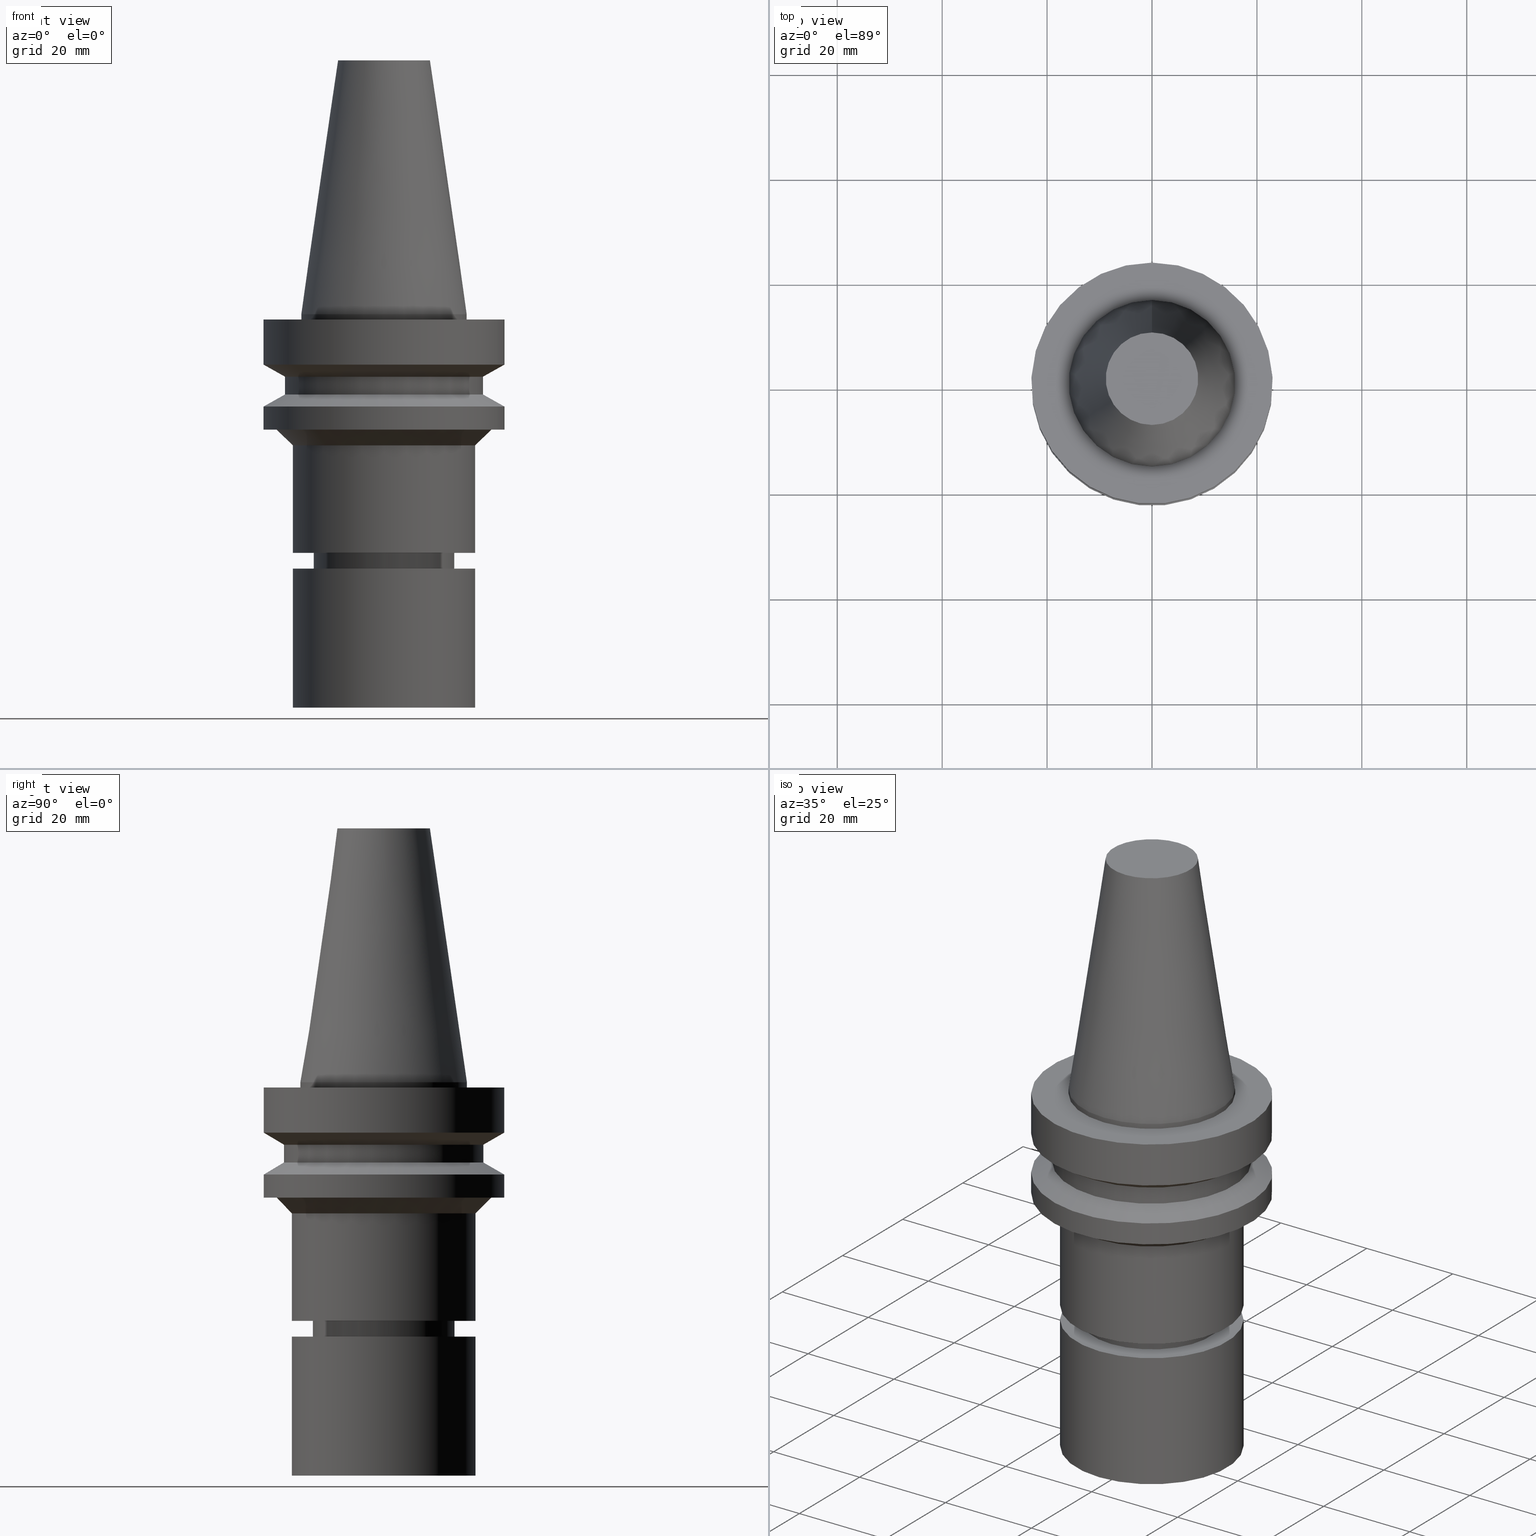
[diagram: canonical four-view strip — front | top / right | iso, engineering-drawing reading convention]
A machine part, canonical four-view strip (front | top / right | iso — engineering-drawing reading convention). The complete STEP part file that produces these views, byte-faithful:
ISO-10303-21;
HEADER;
FILE_DESCRIPTION((''),'1');
FILE_NAME('V:/90_\X2\53D65F9730C730FC30BF\X0\/00_\X2\6DE18DEF30C730FC30BF\X0\/ALL/BBT-BKUS\X2\FF76FF80FF9BFF78FF9E752852A05DE556F3\X0\201801/BBT30-MEGAER/BBT30-MEGAER20-75NL.stp','2018-02-02T07:17:17',(''),(''),'Spatial Interop R21 SP3','Kubotek KeyCreator 2011 V10.0.2 (22737)',' ');
FILE_SCHEMA(('automotive_design'));
ENDSEC;
DATA;
#1=MECHANICAL_DESIGN_GEOMETRIC_PRESENTATION_REPRESENTATION(' ',(#14,#15,#16,#17,#18,#19,#20,#21,#22,#23,#24,#25,#26,#27,#28,#29,#30,#31,#32,#33,#34,#35,#36,#37,#38,#39,#40,#41,#42,#43,#44,#45,#46,#47,#48,#49,#50,#51,#52,#53,#54,#55),#10);
#2=PRODUCT_DEFINITION_CONTEXT('',#56,'design');
#3=APPLICATION_PROTOCOL_DEFINITION('INTERNATIONAL STANDARD','automotive_design',1994,#56);
#4=PRODUCT_CATEGORY_RELATIONSHIP('NONE','NONE',#57,#58);
#5=SHAPE_DEFINITION_REPRESENTATION(#59,#60);
#6=PRODUCT_DEFINITION_CONTEXT('',#61,'design');
#7=APPLICATION_PROTOCOL_DEFINITION('INTERNATIONAL STANDARD','automotive_design',1994,#61);
#8=PRODUCT_CATEGORY_RELATIONSHIP('NONE','NONE',#62,#63);
#9=SHAPE_DEFINITION_REPRESENTATION(#64,#65);
#10= (GEOMETRIC_REPRESENTATION_CONTEXT(3)GLOBAL_UNCERTAINTY_ASSIGNED_CONTEXT((#68))GLOBAL_UNIT_ASSIGNED_CONTEXT((#70,#71,#72))REPRESENTATION_CONTEXT('NONE','WORKSPACE'));
#14=STYLED_ITEM('',(#74),#75);
#15=STYLED_ITEM('',(#76),#77);
#16=STYLED_ITEM('',(#78,#79),#80);
#17=STYLED_ITEM('',(#81),#82);
#18=STYLED_ITEM('',(#83),#84);
#19=STYLED_ITEM('',(#85),#86);
#20=STYLED_ITEM('',(#87,#88),#89);
#21=STYLED_ITEM('',(#90,#91),#92);
#22=STYLED_ITEM('',(#93,#94),#95);
#23=STYLED_ITEM('',(#96),#97);
#24=STYLED_ITEM('',(#98),#99);
#25=STYLED_ITEM('',(#100,#101),#102);
#26=STYLED_ITEM('',(#103),#104);
#27=STYLED_ITEM('',(#105),#106);
#28=STYLED_ITEM('',(#107,#108),#109);
#29=STYLED_ITEM('',(#110,#111),#112);
#30=STYLED_ITEM('',(#113),#114);
#31=STYLED_ITEM('',(#115,#116),#117);
#32=STYLED_ITEM('',(#118,#119),#120);
#33=STYLED_ITEM('',(#121,#122),#123);
#34=STYLED_ITEM('',(#124),#125);
#35=STYLED_ITEM('',(#126,#127),#128);
#36=STYLED_ITEM('',(#129),#130);
#37=STYLED_ITEM('',(#131,#132),#133);
#38=STYLED_ITEM('',(#134,#135),#136);
#39=STYLED_ITEM('',(#137),#138);
#40=STYLED_ITEM('',(#139),#140);
#41=STYLED_ITEM('',(#141,#142),#143);
#42=STYLED_ITEM('',(#144),#145);
#43=STYLED_ITEM('',(#146,#147),#148);
#44=STYLED_ITEM('',(#149,#150),#151);
#45=STYLED_ITEM('',(#152),#153);
#46=STYLED_ITEM('',(#154,#155),#156);
#47=STYLED_ITEM('',(#157,#158),#159);
#48=STYLED_ITEM('',(#160),#161);
#49=STYLED_ITEM('',(#162,#163),#164);
#50=STYLED_ITEM('',(#165),#166);
#51=STYLED_ITEM('',(#167,#168),#169);
#52=STYLED_ITEM('',(#170,#171),#172);
#53=STYLED_ITEM('',(#173,#174),#175);
#54=STYLED_ITEM('',(#176,#177),#178);
#55=STYLED_ITEM('',(#179),#180);
#56=APPLICATION_CONTEXT(' ');
#57=PRODUCT_CATEGORY('part','NONE');
#58=PRODUCT_RELATED_PRODUCT_CATEGORY('detail',' ',(#181));
#59=PRODUCT_DEFINITION_SHAPE('NONE','NONE',#182);
#60=ADVANCED_BREP_SHAPE_REPRESENTATION('Unnamed[1]',(#164,#183),#10);
#61=APPLICATION_CONTEXT(' ');
#62=PRODUCT_CATEGORY('part','NONE');
#63=PRODUCT_RELATED_PRODUCT_CATEGORY('detail',' ',(#184));
#64=PRODUCT_DEFINITION_SHAPE('NONE','NONE',#185);
#65=ADVANCED_BREP_SHAPE_REPRESENTATION('Unnamed[1]',(#175,#186),#10);
#68=UNCERTAINTY_MEASURE_WITH_UNIT(LENGTH_MEASURE(1.0E-006),#70,'','');
#70= (CONVERSION_BASED_UNIT('MILLIMETRE',#189)LENGTH_UNIT()NAMED_UNIT(#192));
#71= (NAMED_UNIT(#194)PLANE_ANGLE_UNIT()SI_UNIT($,.RADIAN.));
#72= (NAMED_UNIT(#194)SOLID_ANGLE_UNIT()SI_UNIT($,.STERADIAN.));
#74=PRESENTATION_STYLE_ASSIGNMENT((#200));
#75=EDGE_CURVE('Unnamed[1]',#201,#201,#202,.T.);
#76=PRESENTATION_STYLE_ASSIGNMENT((#203));
#77=EDGE_CURVE('Unnamed[1]',#204,#204,#205,.T.);
#78=PRESENTATION_STYLE_ASSIGNMENT((#206));
#79=PRESENTATION_STYLE_ASSIGNMENT((#207));
#80=ADVANCED_FACE('Unnamed[1]',(#208,#209),#210,.T.);
#81=PRESENTATION_STYLE_ASSIGNMENT((#211));
#82=EDGE_CURVE('Unnamed[1]',#212,#212,#213,.T.);
#83=PRESENTATION_STYLE_ASSIGNMENT((#214));
#84=EDGE_CURVE('Unnamed[1]',#215,#215,#216,.T.);
#85=PRESENTATION_STYLE_ASSIGNMENT((#217));
#86=EDGE_CURVE('Unnamed[1]',#218,#218,#219,.T.);
#87=PRESENTATION_STYLE_ASSIGNMENT((#220));
#88=PRESENTATION_STYLE_ASSIGNMENT((#221));
#89=ADVANCED_FACE('Unnamed[1]',(#222,#223),#224,.T.);
#90=PRESENTATION_STYLE_ASSIGNMENT((#225));
#91=PRESENTATION_STYLE_ASSIGNMENT((#226));
#92=ADVANCED_FACE('Unnamed[1]',(#227),#228,.T.);
#93=PRESENTATION_STYLE_ASSIGNMENT((#229));
#94=PRESENTATION_STYLE_ASSIGNMENT((#230));
#95=ADVANCED_FACE('Unnamed[1]',(#231,#232),#233,.T.);
#96=PRESENTATION_STYLE_ASSIGNMENT((#234));
#97=EDGE_CURVE('Unnamed[1]',#235,#235,#236,.T.);
#98=PRESENTATION_STYLE_ASSIGNMENT((#237));
#99=EDGE_CURVE('Unnamed[1]',#238,#238,#239,.T.);
#100=PRESENTATION_STYLE_ASSIGNMENT((#240));
#101=PRESENTATION_STYLE_ASSIGNMENT((#241));
#102=ADVANCED_FACE('Unnamed[1]',(#242,#243),#244,.T.);
#103=PRESENTATION_STYLE_ASSIGNMENT((#245));
#104=EDGE_CURVE('Unnamed[1]',#246,#246,#247,.T.);
#105=PRESENTATION_STYLE_ASSIGNMENT((#248));
#106=EDGE_CURVE('Unnamed[1]',#249,#249,#250,.T.);
#107=PRESENTATION_STYLE_ASSIGNMENT((#251));
#108=PRESENTATION_STYLE_ASSIGNMENT((#252));
#109=ADVANCED_FACE('Unnamed[1]',(#253,#254),#255,.T.);
#110=PRESENTATION_STYLE_ASSIGNMENT((#256));
#111=PRESENTATION_STYLE_ASSIGNMENT((#257));
#112=ADVANCED_FACE('Unnamed[1]',(#258,#259),#260,.T.);
#113=PRESENTATION_STYLE_ASSIGNMENT((#261));
#114=EDGE_CURVE('Unnamed[1]',#262,#262,#263,.T.);
#115=PRESENTATION_STYLE_ASSIGNMENT((#264));
#116=PRESENTATION_STYLE_ASSIGNMENT((#265));
#117=ADVANCED_FACE('Unnamed[1]',(#266,#267),#268,.T.);
#118=PRESENTATION_STYLE_ASSIGNMENT((#269));
#119=PRESENTATION_STYLE_ASSIGNMENT((#270));
#120=ADVANCED_FACE('Unnamed[1]',(#271,#272),#273,.T.);
#121=PRESENTATION_STYLE_ASSIGNMENT((#274));
#122=PRESENTATION_STYLE_ASSIGNMENT((#275));
#123=ADVANCED_FACE('Unnamed[1]',(#276,#277),#278,.T.);
#124=PRESENTATION_STYLE_ASSIGNMENT((#279));
#125=EDGE_CURVE('Unnamed[1]',#280,#280,#281,.T.);
#126=PRESENTATION_STYLE_ASSIGNMENT((#282));
#127=PRESENTATION_STYLE_ASSIGNMENT((#283));
#128=ADVANCED_FACE('Unnamed[1]',(#284,#285),#286,.T.);
#129=PRESENTATION_STYLE_ASSIGNMENT((#287));
#130=EDGE_CURVE('Unnamed[1]',#288,#288,#289,.T.);
#131=PRESENTATION_STYLE_ASSIGNMENT((#290));
#132=PRESENTATION_STYLE_ASSIGNMENT((#291));
#133=ADVANCED_FACE('Unnamed[1]',(#292,#293),#294,.T.);
#134=PRESENTATION_STYLE_ASSIGNMENT((#295));
#135=PRESENTATION_STYLE_ASSIGNMENT((#296));
#136=ADVANCED_FACE('Unnamed[1]',(#297,#298),#299,.T.);
#137=PRESENTATION_STYLE_ASSIGNMENT((#300));
#138=EDGE_CURVE('Unnamed[1]',#301,#301,#302,.T.);
#139=PRESENTATION_STYLE_ASSIGNMENT((#303));
#140=EDGE_CURVE('Unnamed[1]',#304,#304,#305,.T.);
#141=PRESENTATION_STYLE_ASSIGNMENT((#306));
#142=PRESENTATION_STYLE_ASSIGNMENT((#307));
#143=ADVANCED_FACE('Unnamed[1]',(#308),#309,.T.);
#144=PRESENTATION_STYLE_ASSIGNMENT((#310));
#145=EDGE_CURVE('Unnamed[1]',#311,#311,#312,.T.);
#146=PRESENTATION_STYLE_ASSIGNMENT((#313));
#147=PRESENTATION_STYLE_ASSIGNMENT((#314));
#148=ADVANCED_FACE('Unnamed[1]',(#315,#316),#317,.T.);
#149=PRESENTATION_STYLE_ASSIGNMENT((#318));
#150=PRESENTATION_STYLE_ASSIGNMENT((#319));
#151=ADVANCED_FACE('Unnamed[1]',(#320,#321),#322,.T.);
#152=PRESENTATION_STYLE_ASSIGNMENT((#323));
#153=EDGE_CURVE('Unnamed[1]',#324,#324,#325,.T.);
#154=PRESENTATION_STYLE_ASSIGNMENT((#326));
#155=PRESENTATION_STYLE_ASSIGNMENT((#327));
#156=ADVANCED_FACE('Unnamed[1]',(#328,#329),#330,.T.);
#157=PRESENTATION_STYLE_ASSIGNMENT((#331));
#158=PRESENTATION_STYLE_ASSIGNMENT((#332));
#159=ADVANCED_FACE('Unnamed[1]',(#333),#334,.T.);
#160=PRESENTATION_STYLE_ASSIGNMENT((#335));
#161=EDGE_CURVE('Unnamed[1]',#336,#336,#337,.T.);
#162=PRESENTATION_STYLE_ASSIGNMENT((#338));
#163=PRESENTATION_STYLE_ASSIGNMENT((#339));
#164=MANIFOLD_SOLID_BREP('Unnamed[1]',#340);
#165=PRESENTATION_STYLE_ASSIGNMENT((#341));
#166=EDGE_CURVE('Unnamed[1]',#342,#342,#343,.T.);
#167=PRESENTATION_STYLE_ASSIGNMENT((#344));
#168=PRESENTATION_STYLE_ASSIGNMENT((#345));
#169=ADVANCED_FACE('Unnamed[1]',(#346,#347),#348,.T.);
#170=PRESENTATION_STYLE_ASSIGNMENT((#349));
#171=PRESENTATION_STYLE_ASSIGNMENT((#350));
#172=ADVANCED_FACE('Unnamed[1]',(#351),#352,.T.);
#173=PRESENTATION_STYLE_ASSIGNMENT((#353));
#174=PRESENTATION_STYLE_ASSIGNMENT((#354));
#175=MANIFOLD_SOLID_BREP('Unnamed[1]',#355);
#176=PRESENTATION_STYLE_ASSIGNMENT((#356));
#177=PRESENTATION_STYLE_ASSIGNMENT((#357));
#178=ADVANCED_FACE('Unnamed[1]',(#358,#359),#360,.T.);
#179=PRESENTATION_STYLE_ASSIGNMENT((#361));
#180=EDGE_CURVE('Unnamed[1]',#362,#362,#363,.T.);
#181=PRODUCT('Unnamed[1]','Unnamed[1]','PART-Unnamed[1]-DESC',(#364));
#182=PRODUCT_DEFINITION('NONE','NONE',#365,#2);
#183=AXIS2_PLACEMENT_3D('',#366,#367,#368);
#184=PRODUCT('Unnamed[1]','Unnamed[1]','PART-Unnamed[1]-DESC',(#369));
#185=PRODUCT_DEFINITION('NONE','NONE',#370,#6);
#186=AXIS2_PLACEMENT_3D('',#371,#372,#373);
#189=LENGTH_MEASURE_WITH_UNIT(LENGTH_MEASURE(1.0),#374);
#192=DIMENSIONAL_EXPONENTS(1.0,0.0,0.0,0.0,0.0,0.0,0.0);
#194=DIMENSIONAL_EXPONENTS(0.0,0.0,0.0,0.0,0.0,0.0,0.0);
#200=CURVE_STYLE('',#375,POSITIVE_LENGTH_MEASURE(1000.0),#376);
#201=VERTEX_POINT('',#377);
#202=CIRCLE('',#378,19.0);
#203=CURVE_STYLE('',#379,POSITIVE_LENGTH_MEASURE(1000.0),#380);
#204=VERTEX_POINT('',#381);
#205=CIRCLE('',#382,23.0);
#206=SURFACE_STYLE_USAGE(.BOTH.,#383);
#207=CURVE_STYLE('',#384,POSITIVE_LENGTH_MEASURE(1000.0),#385);
#208=FACE_BOUND('',#386,.T.);
#209=FACE_BOUND('',#387,.T.);
#210=CONICAL_SURFACE('',#388,12.3457500009933,0.144815870013618);
#211=CURVE_STYLE('',#389,POSITIVE_LENGTH_MEASURE(1000.0),#390);
#212=VERTEX_POINT('',#391);
#213=CIRCLE('',#392,13.4999999999908);
#214=CURVE_STYLE('',#393,POSITIVE_LENGTH_MEASURE(1000.0),#394);
#215=VERTEX_POINT('',#395);
#216=CIRCLE('',#396,12.4999999999998);
#217=CURVE_STYLE('',#397,POSITIVE_LENGTH_MEASURE(1000.0),#398);
#218=VERTEX_POINT('',#399);
#219=CIRCLE('',#400,12.4999999999999);
#220=SURFACE_STYLE_USAGE(.BOTH.,#401);
#221=CURVE_STYLE('',#402,POSITIVE_LENGTH_MEASURE(1000.0),#403);
#222=FACE_BOUND('',#404,.T.);
#223=FACE_BOUND('',#405,.T.);
#224=CONICAL_SURFACE('',#406,18.9999999999971,0.78539816339738);
#225=SURFACE_STYLE_USAGE(.BOTH.,#407);
#226=CURVE_STYLE('',#408,POSITIVE_LENGTH_MEASURE(1000.0),#409);
#227=FACE_OUTER_BOUND('',#410,.T.);
#228=PLANE('',#411);
#229=SURFACE_STYLE_USAGE(.BOTH.,#412);
#230=CURVE_STYLE('',#413,POSITIVE_LENGTH_MEASURE(1000.0),#414);
#231=FACE_BOUND('',#415,.T.);
#232=FACE_BOUND('',#416,.T.);
#233=CYLINDRICAL_SURFACE('',#417,19.0);
#234=CURVE_STYLE('',#418,POSITIVE_LENGTH_MEASURE(1000.0),#419);
#235=VERTEX_POINT('',#420);
#236=CIRCLE('',#421,13.5000000000005);
#237=CURVE_STYLE('',#422,POSITIVE_LENGTH_MEASURE(1000.0),#423);
#238=VERTEX_POINT('',#424);
#239=CIRCLE('',#425,11.3999999999978);
#240=SURFACE_STYLE_USAGE(.BOTH.,#426);
#241=CURVE_STYLE('',#427,POSITIVE_LENGTH_MEASURE(1000.0),#428);
#242=FACE_BOUND('',#429,.T.);
#243=FACE_BOUND('',#430,.T.);
#244=CONICAL_SURFACE('',#431,21.0,1.04719755058881);
#245=CURVE_STYLE('',#432,POSITIVE_LENGTH_MEASURE(1000.0),#433);
#246=VERTEX_POINT('',#434);
#247=CIRCLE('',#435,8.81650000198669);
#248=CURVE_STYLE('',#436,POSITIVE_LENGTH_MEASURE(1000.0),#437);
#249=VERTEX_POINT('',#438);
#250=CIRCLE('',#439,17.4999999999971);
#251=SURFACE_STYLE_USAGE(.BOTH.,#440);
#252=CURVE_STYLE('',#441,POSITIVE_LENGTH_MEASURE(1000.0),#442);
#253=FACE_BOUND('',#443,.T.);
#254=FACE_BOUND('',#444,.T.);
#255=CONICAL_SURFACE('',#445,11.9499999999988,0.523598775598664);
#256=SURFACE_STYLE_USAGE(.BOTH.,#446);
#257=CURVE_STYLE('',#447,POSITIVE_LENGTH_MEASURE(1000.0),#448);
#258=FACE_BOUND('',#449,.T.);
#259=FACE_BOUND('',#450,.T.);
#260=CYLINDRICAL_SURFACE('',#451,23.0);
#261=CURVE_STYLE('',#452,POSITIVE_LENGTH_MEASURE(1000.0),#453);
#262=VERTEX_POINT('',#454);
#263=CIRCLE('',#455,17.5);
#264=SURFACE_STYLE_USAGE(.BOTH.,#456);
#265=CURVE_STYLE('',#457,POSITIVE_LENGTH_MEASURE(1000.0),#458);
#266=FACE_OUTER_BOUND('',#459,.T.);
#267=FACE_BOUND('',#460,.T.);
#268=PLANE('',#461);
#269=SURFACE_STYLE_USAGE(.BOTH.,#462);
#270=CURVE_STYLE('',#463,POSITIVE_LENGTH_MEASURE(1000.0),#464);
#271=FACE_BOUND('',#465,.T.);
#272=FACE_BOUND('',#466,.T.);
#273=CYLINDRICAL_SURFACE('',#467,12.4999999999999);
#274=SURFACE_STYLE_USAGE(.BOTH.,#468);
#275=CURVE_STYLE('',#469,POSITIVE_LENGTH_MEASURE(1000.0),#470);
#276=FACE_BOUND('',#471,.T.);
#277=FACE_OUTER_BOUND('',#472,.T.);
#278=PLANE('',#473);
#279=CURVE_STYLE('',#474,POSITIVE_LENGTH_MEASURE(1000.0),#475);
#280=VERTEX_POINT('',#476);
#281=CIRCLE('',#477,23.0);
#282=SURFACE_STYLE_USAGE(.BOTH.,#478);
#283=CURVE_STYLE('',#479,POSITIVE_LENGTH_MEASURE(1000.0),#480);
#284=FACE_BOUND('',#481,.T.);
#285=FACE_BOUND('',#482,.T.);
#286=CYLINDRICAL_SURFACE('',#483,23.0);
#287=CURVE_STYLE('',#484,POSITIVE_LENGTH_MEASURE(1000.0),#485);
#288=VERTEX_POINT('',#486);
#289=CIRCLE('',#487,17.5);
#290=SURFACE_STYLE_USAGE(.BOTH.,#488);
#291=CURVE_STYLE('',#489,POSITIVE_LENGTH_MEASURE(1000.0),#490);
#292=FACE_BOUND('',#491,.T.);
#293=FACE_BOUND('',#492,.T.);
#294=CYLINDRICAL_SURFACE('',#493,15.875);
#295=SURFACE_STYLE_USAGE(.BOTH.,#494);
#296=CURVE_STYLE('',#495,POSITIVE_LENGTH_MEASURE(1000.0),#496);
#297=FACE_BOUND('',#497,.T.);
#298=FACE_BOUND('',#498,.T.);
#299=CYLINDRICAL_SURFACE('',#499,13.4999999999956);
#300=CURVE_STYLE('',#500,POSITIVE_LENGTH_MEASURE(1000.0),#501);
#301=VERTEX_POINT('',#502);
#302=CIRCLE('',#503,15.875);
#303=CURVE_STYLE('',#504,POSITIVE_LENGTH_MEASURE(1000.0),#505);
#304=VERTEX_POINT('',#506);
#305=CIRCLE('',#507,23.0);
#306=SURFACE_STYLE_USAGE(.BOTH.,#508);
#307=CURVE_STYLE('',#509,POSITIVE_LENGTH_MEASURE(1000.0),#510);
#308=FACE_OUTER_BOUND('',#511,.T.);
#309=PLANE('',#512);
#310=CURVE_STYLE('',#513,POSITIVE_LENGTH_MEASURE(1000.0),#514);
#311=VERTEX_POINT('',#515);
#312=CIRCLE('',#516,20.4999999999971);
#313=SURFACE_STYLE_USAGE(.BOTH.,#517);
#314=CURVE_STYLE('',#518,POSITIVE_LENGTH_MEASURE(1000.0),#519);
#315=FACE_BOUND('',#520,.T.);
#316=FACE_BOUND('',#521,.T.);
#317=CYLINDRICAL_SURFACE('',#522,17.4999999999985);
#318=SURFACE_STYLE_USAGE(.BOTH.,#523);
#319=CURVE_STYLE('',#524,POSITIVE_LENGTH_MEASURE(1000.0),#525);
#320=FACE_BOUND('',#526,.T.);
#321=FACE_BOUND('',#527,.T.);
#322=CONICAL_SURFACE('',#528,21.0,1.04719755058882);
#323=CURVE_STYLE('',#529,POSITIVE_LENGTH_MEASURE(1000.0),#530);
#324=VERTEX_POINT('',#531);
#325=CIRCLE('',#532,15.875);
#326=SURFACE_STYLE_USAGE(.BOTH.,#533);
#327=CURVE_STYLE('',#534,POSITIVE_LENGTH_MEASURE(1000.0),#535);
#328=FACE_BOUND('',#536,.T.);
#329=FACE_BOUND('',#537,.T.);
#330=CYLINDRICAL_SURFACE('',#538,17.5);
#331=SURFACE_STYLE_USAGE(.BOTH.,#539);
#332=CURVE_STYLE('',#540,POSITIVE_LENGTH_MEASURE(1000.0),#541);
#333=FACE_OUTER_BOUND('',#542,.T.);
#334=PLANE('',#543);
#335=CURVE_STYLE('',#544,POSITIVE_LENGTH_MEASURE(1000.0),#545);
#336=VERTEX_POINT('',#546);
#337=CIRCLE('',#547,23.0);
#338=SURFACE_STYLE_USAGE(.BOTH.,#548);
#339=CURVE_STYLE('',#549,POSITIVE_LENGTH_MEASURE(1000.0),#550);
#340=CLOSED_SHELL('',(#143,#80,#133,#117,#128,#102,#95,#151,#112,#169,#89,#148,#123,#136,#178,#120,#109,#92));
#341=CURVE_STYLE('',#551,POSITIVE_LENGTH_MEASURE(1000.0),#552);
#342=VERTEX_POINT('',#553);
#343=CIRCLE('',#554,17.5);
#344=SURFACE_STYLE_USAGE(.BOTH.,#555);
#345=CURVE_STYLE('',#556,POSITIVE_LENGTH_MEASURE(1000.0),#557);
#346=FACE_BOUND('',#558,.T.);
#347=FACE_OUTER_BOUND('',#559,.T.);
#348=PLANE('',#560);
#349=SURFACE_STYLE_USAGE(.BOTH.,#561);
#350=CURVE_STYLE('',#562,POSITIVE_LENGTH_MEASURE(1000.0),#563);
#351=FACE_OUTER_BOUND('',#564,.T.);
#352=PLANE('',#565);
#353=SURFACE_STYLE_USAGE(.BOTH.,#566);
#354=CURVE_STYLE('',#567,POSITIVE_LENGTH_MEASURE(1000.0),#568);
#355=CLOSED_SHELL('',(#172,#159,#156));
#356=SURFACE_STYLE_USAGE(.BOTH.,#569);
#357=CURVE_STYLE('',#570,POSITIVE_LENGTH_MEASURE(1000.0),#571);
#358=FACE_BOUND('',#572,.T.);
#359=FACE_BOUND('',#573,.T.);
#360=CONICAL_SURFACE('',#574,13.0000000000002,1.04719755119485);
#361=CURVE_STYLE('',#575,POSITIVE_LENGTH_MEASURE(1000.0),#576);
#362=VERTEX_POINT('',#577);
#363=CIRCLE('',#578,19.0);
#364=PRODUCT_CONTEXT('',#56,'mechanical');
#365=PRODUCT_DEFINITION_FORMATION_WITH_SPECIFIED_SOURCE(' ','NONE',#181,.NOT_KNOWN.);
#366=CARTESIAN_POINT('',(0.0,0.0,0.0));
#367=DIRECTION('',(0.0,0.0,1.0));
#368=DIRECTION('',(1.0,0.0,0.0));
#369=PRODUCT_CONTEXT('',#61,'mechanical');
#370=PRODUCT_DEFINITION_FORMATION_WITH_SPECIFIED_SOURCE(' ','NONE',#184,.NOT_KNOWN.);
#371=CARTESIAN_POINT('',(0.0,0.0,0.0));
#372=DIRECTION('',(0.0,0.0,1.0));
#373=DIRECTION('',(1.0,0.0,0.0));
#374= (NAMED_UNIT(#192)LENGTH_UNIT()SI_UNIT(.MILLI.,.METRE.));
#375=DRAUGHTING_PRE_DEFINED_CURVE_FONT('continuous');
#376=COLOUR_RGB('',0.0,1.0,0.0);
#377=CARTESIAN_POINT('',(7.29240495619202E-016,19.0,-11.90940108));
#378=AXIS2_PLACEMENT_3D('',#580,#581,#582);
#379=DRAUGHTING_PRE_DEFINED_CURVE_FONT('continuous');
#380=COLOUR_RGB('',0.0,1.0,0.0);
#381=CARTESIAN_POINT('',(1.07768918324967E-015,23.0,-17.6));
#382=AXIS2_PLACEMENT_3D('',#583,#584,#585);
#383=SURFACE_SIDE_STYLE('',(#586));
#384=DRAUGHTING_PRE_DEFINED_CURVE_FONT('continuous');
#385=COLOUR_RGB('',0.0,1.0,0.0);
#386=EDGE_LOOP('',(#587));
#387=EDGE_LOOP('',(#588));
#388=AXIS2_PLACEMENT_3D('',#589,#590,#591);
#389=DRAUGHTING_PRE_DEFINED_CURVE_FONT('continuous');
#390=COLOUR_RGB('',0.0,1.0,0.0);
#391=CARTESIAN_POINT('',(2.7860714680602E-015,13.4999999999908,-45.4999999999996));
#392=AXIS2_PLACEMENT_3D('',#592,#593,#594);
#393=DRAUGHTING_PRE_DEFINED_CURVE_FONT('continuous');
#394=COLOUR_RGB('',0.0,1.0,0.0);
#395=CARTESIAN_POINT('',(3.87568528896053E-015,12.4999999999998,-63.2947441116725));
#396=AXIS2_PLACEMENT_3D('',#595,#596,#597);
#397=DRAUGHTING_PRE_DEFINED_CURVE_FONT('continuous');
#398=COLOUR_RGB('',0.0,1.0,0.0);
#399=CARTESIAN_POINT('',(3.17793855151861E-015,12.4999999999999,-51.8996751345975));
#400=AXIS2_PLACEMENT_3D('',#598,#599,#600);
#401=SURFACE_SIDE_STYLE('',(#601));
#402=DRAUGHTING_PRE_DEFINED_CURVE_FONT('continuous');
#403=COLOUR_RGB('',0.0,1.0,0.0);
#404=EDGE_LOOP('',(#602));
#405=EDGE_LOOP('',(#603));
#406=AXIS2_PLACEMENT_3D('',#604,#605,#606);
#407=SURFACE_SIDE_STYLE('',(#607));
#408=DRAUGHTING_PRE_DEFINED_CURVE_FONT('continuous');
#409=COLOUR_RGB('',0.0,1.0,0.0);
#410=EDGE_LOOP('',(#608));
#411=AXIS2_PLACEMENT_3D('',#609,#610,#611);
#412=SURFACE_SIDE_STYLE('',(#612));
#413=DRAUGHTING_PRE_DEFINED_CURVE_FONT('continuous');
#414=COLOUR_RGB('',0.0,1.0,0.0);
#415=EDGE_LOOP('',(#613));
#416=EDGE_LOOP('',(#614));
#417=AXIS2_PLACEMENT_3D('',#615,#616,#617);
#418=DRAUGHTING_PRE_DEFINED_CURVE_FONT('continuous');
#419=COLOUR_RGB('',0.0,1.0,0.0);
#420=CARTESIAN_POINT('',(3.14258604356095E-015,13.5000000000005,-51.3223248654052));
#421=AXIS2_PLACEMENT_3D('',#618,#619,#620);
#422=DRAUGHTING_PRE_DEFINED_CURVE_FONT('continuous');
#423=COLOUR_RGB('',0.0,1.0,0.0);
#424=CARTESIAN_POINT('',(3.99234856522038E-015,11.3999999999978,-65.2000000000002));
#425=AXIS2_PLACEMENT_3D('',#621,#622,#623);
#426=SURFACE_SIDE_STYLE('',(#624));
#427=DRAUGHTING_PRE_DEFINED_CURVE_FONT('continuous');
#428=COLOUR_RGB('',0.0,1.0,0.0);
#429=EDGE_LOOP('',(#625));
#430=EDGE_LOOP('',(#626));
#431=AXIS2_PLACEMENT_3D('',#627,#628,#629);
#432=DRAUGHTING_PRE_DEFINED_CURVE_FONT('continuous');
#433=COLOUR_RGB('',0.0,1.0,0.0);
#434=CARTESIAN_POINT('',(-2.96364525393659E-015,8.81650000198669,48.4));
#435=AXIS2_PLACEMENT_3D('',#630,#631,#632);
#436=DRAUGHTING_PRE_DEFINED_CURVE_FONT('continuous');
#437=COLOUR_RGB('',0.0,1.0,0.0);
#438=CARTESIAN_POINT('',(1.53080849893422E-015,17.4999999999971,-25.0000000000004));
#439=AXIS2_PLACEMENT_3D('',#633,#634,#635);
#440=SURFACE_SIDE_STYLE('',(#636));
#441=DRAUGHTING_PRE_DEFINED_CURVE_FONT('continuous');
#442=COLOUR_RGB('',0.0,1.0,0.0);
#443=EDGE_LOOP('',(#637));
#444=EDGE_LOOP('',(#638));
#445=AXIS2_PLACEMENT_3D('',#639,#640,#641);
#446=SURFACE_SIDE_STYLE('',(#642));
#447=DRAUGHTING_PRE_DEFINED_CURVE_FONT('continuous');
#448=COLOUR_RGB('',0.0,1.0,0.0);
#449=EDGE_LOOP('',(#643));
#450=EDGE_LOOP('',(#644));
#451=AXIS2_PLACEMENT_3D('',#645,#646,#647);
#452=DRAUGHTING_PRE_DEFINED_CURVE_FONT('continuous');
#453=COLOUR_RGB('',0.0,1.0,0.0);
#454=CARTESIAN_POINT('',(4.59242549680257E-015,17.5,-75.0));
#455=AXIS2_PLACEMENT_3D('',#648,#649,#650);
#456=SURFACE_SIDE_STYLE('',(#651));
#457=DRAUGHTING_PRE_DEFINED_CURVE_FONT('continuous');
#458=COLOUR_RGB('',0.0,1.0,0.0);
#459=EDGE_LOOP('',(#652));
#460=EDGE_LOOP('',(#653));
#461=AXIS2_PLACEMENT_3D('',#654,#655,#656);
#462=SURFACE_SIDE_STYLE('',(#657));
#463=DRAUGHTING_PRE_DEFINED_CURVE_FONT('continuous');
#464=COLOUR_RGB('',0.0,1.0,0.0);
#465=EDGE_LOOP('',(#658));
#466=EDGE_LOOP('',(#659));
#467=AXIS2_PLACEMENT_3D('',#660,#661,#662);
#468=SURFACE_SIDE_STYLE('',(#663));
#469=DRAUGHTING_PRE_DEFINED_CURVE_FONT('continuous');
#470=COLOUR_RGB('',0.0,1.0,0.0);
#471=EDGE_LOOP('',(#664));
#472=EDGE_LOOP('',(#665));
#473=AXIS2_PLACEMENT_3D('',#666,#667,#668);
#474=DRAUGHTING_PRE_DEFINED_CURVE_FONT('continuous');
#475=COLOUR_RGB('',0.0,1.0,0.0);
#476=CARTESIAN_POINT('',(5.87830463590729E-016,23.0,-9.59999999999999));
#477=AXIS2_PLACEMENT_3D('',#669,#670,#671);
#478=SURFACE_SIDE_STYLE('',(#672));
#479=DRAUGHTING_PRE_DEFINED_CURVE_FONT('continuous');
#480=COLOUR_RGB('',0.0,1.0,0.0);
#481=EDGE_LOOP('',(#673));
#482=EDGE_LOOP('',(#674));
#483=AXIS2_PLACEMENT_3D('',#675,#676,#677);
#484=DRAUGHTING_PRE_DEFINED_CURVE_FONT('continuous');
#485=COLOUR_RGB('',0.0,1.0,0.0);
#486=CARTESIAN_POINT('',(2.78607146806022E-015,17.5,-45.4999999999998));
#487=AXIS2_PLACEMENT_3D('',#678,#679,#680);
#488=SURFACE_SIDE_STYLE('',(#681));
#489=DRAUGHTING_PRE_DEFINED_CURVE_FONT('continuous');
#490=COLOUR_RGB('',0.0,1.0,0.0);
#491=EDGE_LOOP('',(#682));
#492=EDGE_LOOP('',(#683));
#493=AXIS2_PLACEMENT_3D('',#684,#685,#686);
#494=SURFACE_SIDE_STYLE('',(#687));
#495=DRAUGHTING_PRE_DEFINED_CURVE_FONT('continuous');
#496=COLOUR_RGB('',0.0,1.0,0.0);
#497=EDGE_LOOP('',(#688));
#498=EDGE_LOOP('',(#689));
#499=AXIS2_PLACEMENT_3D('',#690,#691,#692);
#500=DRAUGHTING_PRE_DEFINED_CURVE_FONT('continuous');
#501=COLOUR_RGB('',0.0,1.0,0.0);
#502=CARTESIAN_POINT('',(-1.95674482349743E-031,15.875,1.94412679364642E-015));
#503=AXIS2_PLACEMENT_3D('',#693,#694,#695);
#504=DRAUGHTING_PRE_DEFINED_CURVE_FONT('continuous');
#505=COLOUR_RGB('',0.0,1.0,0.0);
#506=CARTESIAN_POINT('',(6.12323399573674E-017,23.0,-0.999999999999997));
#507=AXIS2_PLACEMENT_3D('',#696,#697,#698);
#508=SURFACE_SIDE_STYLE('',(#699));
#509=DRAUGHTING_PRE_DEFINED_CURVE_FONT('continuous');
#510=COLOUR_RGB('',0.0,1.0,0.0);
#511=EDGE_LOOP('',(#700));
#512=AXIS2_PLACEMENT_3D('',#701,#702,#703);
#513=DRAUGHTING_PRE_DEFINED_CURVE_FONT('continuous');
#514=COLOUR_RGB('',0.0,1.0,0.0);
#515=CARTESIAN_POINT('',(1.34711147906209E-015,20.4999999999971,-22.0));
#516=AXIS2_PLACEMENT_3D('',#704,#705,#706);
#517=SURFACE_SIDE_STYLE('',(#707));
#518=DRAUGHTING_PRE_DEFINED_CURVE_FONT('continuous');
#519=COLOUR_RGB('',0.0,1.0,0.0);
#520=EDGE_LOOP('',(#708));
#521=EDGE_LOOP('',(#709));
#522=AXIS2_PLACEMENT_3D('',#710,#711,#712);
#523=SURFACE_SIDE_STYLE('',(#713));
#524=DRAUGHTING_PRE_DEFINED_CURVE_FONT('continuous');
#525=COLOUR_RGB('',0.0,1.0,0.0);
#526=EDGE_LOOP('',(#714));
#527=EDGE_LOOP('',(#715));
#528=AXIS2_PLACEMENT_3D('',#716,#717,#718);
#529=DRAUGHTING_PRE_DEFINED_CURVE_FONT('continuous');
#530=COLOUR_RGB('',0.0,1.0,0.0);
#531=CARTESIAN_POINT('',(6.12323399573675E-017,15.875,-0.999999999999998));
#532=AXIS2_PLACEMENT_3D('',#719,#720,#721);
#533=SURFACE_SIDE_STYLE('',(#722));
#534=DRAUGHTING_PRE_DEFINED_CURVE_FONT('continuous');
#535=COLOUR_RGB('',0.0,1.0,0.0);
#536=EDGE_LOOP('',(#723));
#537=EDGE_LOOP('',(#724));
#538=AXIS2_PLACEMENT_3D('',#725,#726,#727);
#539=SURFACE_SIDE_STYLE('',(#728));
#540=DRAUGHTING_PRE_DEFINED_CURVE_FONT('continuous');
#541=COLOUR_RGB('',0.0,1.0,0.0);
#542=EDGE_LOOP('',(#729));
#543=AXIS2_PLACEMENT_3D('',#730,#731,#732);
#544=DRAUGHTING_PRE_DEFINED_CURVE_FONT('continuous');
#545=COLOUR_RGB('',0.0,1.0,0.0);
#546=CARTESIAN_POINT('',(1.34711147906209E-015,23.0,-22.0));
#547=AXIS2_PLACEMENT_3D('',#733,#734,#735);
#548=SURFACE_SIDE_STYLE('',(#736));
#549=DRAUGHTING_PRE_DEFINED_CURVE_FONT('continuous');
#550=COLOUR_RGB('',0.0,1.0,0.0);
#551=DRAUGHTING_PRE_DEFINED_CURVE_FONT('continuous');
#552=COLOUR_RGB('',0.0,1.0,0.0);
#553=CARTESIAN_POINT('',(2.96976942226369E-015,17.5,-48.5000152587891));
#554=AXIS2_PLACEMENT_3D('',#737,#738,#739);
#555=SURFACE_SIDE_STYLE('',(#740));
#556=DRAUGHTING_PRE_DEFINED_CURVE_FONT('continuous');
#557=COLOUR_RGB('',0.0,1.0,0.0);
#558=EDGE_LOOP('',(#741));
#559=EDGE_LOOP('',(#742));
#560=AXIS2_PLACEMENT_3D('',#743,#744,#745);
#561=SURFACE_SIDE_STYLE('',(#746));
#562=DRAUGHTING_PRE_DEFINED_CURVE_FONT('continuous');
#563=COLOUR_RGB('',0.0,1.0,0.0);
#564=EDGE_LOOP('',(#747));
#565=AXIS2_PLACEMENT_3D('',#748,#749,#750);
#566=SURFACE_SIDE_STYLE('',(#751));
#567=DRAUGHTING_PRE_DEFINED_CURVE_FONT('continuous');
#568=COLOUR_RGB('',0.0,1.0,0.0);
#569=SURFACE_SIDE_STYLE('',(#752));
#570=DRAUGHTING_PRE_DEFINED_CURVE_FONT('continuous');
#571=COLOUR_RGB('',0.0,1.0,0.0);
#572=EDGE_LOOP('',(#753));
#573=EDGE_LOOP('',(#754));
#574=AXIS2_PLACEMENT_3D('',#755,#756,#757);
#575=DRAUGHTING_PRE_DEFINED_CURVE_FONT('continuous');
#576=COLOUR_RGB('',0.0,1.0,0.0);
#577=CARTESIAN_POINT('',(9.36279151221199E-016,19.0,-15.29059892));
#578=AXIS2_PLACEMENT_3D('',#758,#759,#760);
#580=CARTESIAN_POINT('',(7.29240495619202E-016,1.4584809912384E-015,-11.90940108));
#581=DIRECTION('',(6.12323399573677E-017,1.22464679914735E-016,-1.0));
#582=DIRECTION('',(-1.23259516440783E-032,1.0,1.22464679914735E-016));
#583=CARTESIAN_POINT('',(1.07768918324967E-015,2.15537836649934E-015,-17.6));
#584=DIRECTION('',(6.12323399573677E-017,1.22464679914735E-016,-1.0));
#585=DIRECTION('',(-1.23259516440783E-032,1.0,1.22464679914735E-016));
#586=SURFACE_STYLE_FILL_AREA(#761);
#587=ORIENTED_EDGE('',*,*,#138,.F.);
#588=ORIENTED_EDGE('',*,*,#104,.T.);
#589=CARTESIAN_POINT('',(-1.4818226269683E-015,-2.96364525393659E-015,24.2));
#590=DIRECTION('',(6.12323399573677E-017,1.22464679914735E-016,-1.0));
#591=DIRECTION('',(-1.23259516440783E-032,1.0,1.22464679914735E-016));
#592=CARTESIAN_POINT('',(2.7860714680602E-015,5.57214293612041E-015,-45.4999999999996));
#593=DIRECTION('',(6.12323399573677E-017,1.22464679914735E-016,-1.0));
#594=DIRECTION('',(-1.23259516440783E-032,1.0,1.22464679914735E-016));
#595=CARTESIAN_POINT('',(3.87568528896053E-015,7.75137057792105E-015,-63.2947441116725));
#596=DIRECTION('',(6.12323399573677E-017,1.22464679914735E-016,-1.0));
#597=DIRECTION('',(-1.23259516440783E-032,1.0,1.22464679914735E-016));
#598=CARTESIAN_POINT('',(3.17793855151861E-015,6.35587710303722E-015,-51.8996751345975));
#599=DIRECTION('',(6.12323399573677E-017,1.22464679914735E-016,-1.0));
#600=DIRECTION('',(-1.23259516440783E-032,1.0,1.22464679914735E-016));
#601=SURFACE_STYLE_FILL_AREA(#762);
#602=ORIENTED_EDGE('',*,*,#106,.F.);
#603=ORIENTED_EDGE('',*,*,#145,.T.);
#604=CARTESIAN_POINT('',(1.43895998899815E-015,2.87791997799631E-015,-23.5000000000002));
#605=DIRECTION('',(-6.12323399573677E-017,-1.22464679914735E-016,1.0));
#606=DIRECTION('',(-1.23259516440783E-032,1.0,1.22464679914735E-016));
#607=SURFACE_STYLE_FILL_AREA(#763);
#608=ORIENTED_EDGE('',*,*,#99,.T.);
#609=CARTESIAN_POINT('',(3.99234856522038E-015,5.69999999999888,-65.2000000000001));
#610=DIRECTION('',(6.12323399573677E-017,-1.60828959602311E-014,-1.0));
#611=DIRECTION('',(9.79966200205077E-031,1.0,-1.60828959602311E-014));
#612=SURFACE_STYLE_FILL_AREA(#764);
#613=ORIENTED_EDGE('',*,*,#180,.F.);
#614=ORIENTED_EDGE('',*,*,#75,.T.);
#615=CARTESIAN_POINT('',(8.32759823420201E-016,1.6655196468404E-015,-13.6));
#616=DIRECTION('',(6.12323399573677E-017,1.22464679914735E-016,-1.0));
#617=DIRECTION('',(-1.23259516440783E-032,1.0,1.22464679914735E-016));
#618=CARTESIAN_POINT('',(3.14258604356095E-015,6.28517208712191E-015,-51.3223248654052));
#619=DIRECTION('',(6.12323399573677E-017,1.22464679914735E-016,-1.0));
#620=DIRECTION('',(-1.23259516440783E-032,1.0,1.22464679914735E-016));
#621=CARTESIAN_POINT('',(3.99234856522038E-015,7.98469713044077E-015,-65.2000000000002));
#622=DIRECTION('',(6.12323399573676E-017,1.22464679914735E-016,-1.0));
#623=DIRECTION('',(-1.23259516440783E-032,1.0,1.22464679914735E-016));
#624=SURFACE_STYLE_FILL_AREA(#765);
#625=ORIENTED_EDGE('',*,*,#75,.F.);
#626=ORIENTED_EDGE('',*,*,#125,.T.);
#627=CARTESIAN_POINT('',(6.58535479604966E-016,1.31707095920993E-015,-10.75470054));
#628=DIRECTION('',(-6.12323399573677E-017,-1.22464679914735E-016,1.0));
#629=DIRECTION('',(-1.23259516440783E-032,1.0,1.22464679914735E-016));
#630=CARTESIAN_POINT('',(-2.96364525393659E-015,-5.92729050787319E-015,48.4));
#631=DIRECTION('',(6.12323399573677E-017,1.22464679914735E-016,-1.0));
#632=DIRECTION('',(-1.23259516440783E-032,1.0,1.22464679914735E-016));
#633=CARTESIAN_POINT('',(1.53080849893422E-015,3.06161699786843E-015,-25.0000000000004));
#634=DIRECTION('',(6.12323399573677E-017,1.22464679914735E-016,-1.0));
#635=DIRECTION('',(-1.23259516440783E-032,1.0,1.22464679914735E-016));
#636=SURFACE_STYLE_FILL_AREA(#766);
#637=ORIENTED_EDGE('',*,*,#99,.F.);
#638=ORIENTED_EDGE('',*,*,#84,.T.);
#639=CARTESIAN_POINT('',(3.93401692709046E-015,7.86803385418091E-015,-64.2473720558364));
#640=DIRECTION('',(-6.12323399573677E-017,-1.22464679914735E-016,1.0));
#641=DIRECTION('',(-1.23259516440783E-032,1.0,1.22464679914735E-016));
#642=SURFACE_STYLE_FILL_AREA(#767);
#643=ORIENTED_EDGE('',*,*,#161,.F.);
#644=ORIENTED_EDGE('',*,*,#77,.T.);
#645=CARTESIAN_POINT('',(1.21240033115588E-015,2.42480066231176E-015,-19.8));
#646=DIRECTION('',(6.12323399573677E-017,1.22464679914735E-016,-1.0));
#647=DIRECTION('',(-1.23259516440783E-032,1.0,1.22464679914735E-016));
#648=CARTESIAN_POINT('',(4.59242549680257E-015,9.18485099360514E-015,-75.0));
#649=DIRECTION('',(6.12323399573677E-017,1.22464679914735E-016,-1.0));
#650=DIRECTION('',(-1.23259516440783E-032,1.0,1.22464679914735E-016));
#651=SURFACE_STYLE_FILL_AREA(#768);
#652=ORIENTED_EDGE('',*,*,#140,.F.);
#653=ORIENTED_EDGE('',*,*,#153,.T.);
#654=CARTESIAN_POINT('',(6.12323399573674E-017,19.4375,-0.999999999999998));
#655=DIRECTION('',(-6.12323399573677E-017,-1.22464679914735E-016,1.0));
#656=DIRECTION('',(1.23259516440783E-032,-1.0,-1.22464679914735E-016));
#657=SURFACE_STYLE_FILL_AREA(#769);
#658=ORIENTED_EDGE('',*,*,#84,.F.);
#659=ORIENTED_EDGE('',*,*,#86,.T.);
#660=CARTESIAN_POINT('',(3.52681192023957E-015,7.05362384047914E-015,-57.597209623135));
#661=DIRECTION('',(6.12323399573677E-017,1.22464679914735E-016,-1.0));
#662=DIRECTION('',(-1.23259516440783E-032,1.0,1.22464679914735E-016));
#663=SURFACE_STYLE_FILL_AREA(#770);
#664=ORIENTED_EDGE('',*,*,#82,.F.);
#665=ORIENTED_EDGE('',*,*,#130,.T.);
#666=CARTESIAN_POINT('',(2.78607146806021E-015,15.4999999999954,-45.4999999999997));
#667=DIRECTION('',(6.12323399573677E-017,-5.13918836625745E-014,-1.0));
#668=DIRECTION('',(3.14201813874548E-030,1.0,-5.13918836625745E-014));
#669=CARTESIAN_POINT('',(5.87830463590729E-016,1.17566092718146E-015,-9.59999999999999));
#670=DIRECTION('',(6.12323399573677E-017,1.22464679914735E-016,-1.0));
#671=DIRECTION('',(-1.23259516440783E-032,1.0,1.22464679914735E-016));
#672=SURFACE_STYLE_FILL_AREA(#771);
#673=ORIENTED_EDGE('',*,*,#125,.F.);
#674=ORIENTED_EDGE('',*,*,#140,.T.);
#675=CARTESIAN_POINT('',(3.24531401774048E-016,6.49062803548097E-016,-5.3));
#676=DIRECTION('',(6.12323399573677E-017,1.22464679914735E-016,-1.0));
#677=DIRECTION('',(-1.23259516440783E-032,1.0,1.22464679914735E-016));
#678=CARTESIAN_POINT('',(2.78607146806022E-015,5.57214293612043E-015,-45.4999999999998));
#679=DIRECTION('',(6.12323399573676E-017,1.22464679914735E-016,-1.0));
#680=DIRECTION('',(-1.23259516440783E-032,1.0,1.22464679914735E-016));
#681=SURFACE_STYLE_FILL_AREA(#772);
#682=ORIENTED_EDGE('',*,*,#153,.F.);
#683=ORIENTED_EDGE('',*,*,#138,.T.);
#684=CARTESIAN_POINT('',(3.06161699786838E-017,6.12323399573676E-017,-0.5));
#685=DIRECTION('',(6.12323399573677E-017,1.22464679914735E-016,-1.0));
#686=DIRECTION('',(-1.23259516440783E-032,1.0,1.22464679914735E-016));
#687=SURFACE_STYLE_FILL_AREA(#773);
#688=ORIENTED_EDGE('',*,*,#97,.F.);
#689=ORIENTED_EDGE('',*,*,#82,.T.);
#690=CARTESIAN_POINT('',(2.96432875581058E-015,5.92865751162116E-015,-48.4111624327024));
#691=DIRECTION('',(6.12323399573677E-017,1.22464679914735E-016,-1.0));
#692=DIRECTION('',(-1.23259516440783E-032,1.0,1.22464679914735E-016));
#693=CARTESIAN_POINT('',(0.0,0.0,0.0));
#694=DIRECTION('',(6.12323399573677E-017,1.22464679914735E-016,-1.0));
#695=DIRECTION('',(-1.23259516440783E-032,1.0,1.22464679914735E-016));
#696=CARTESIAN_POINT('',(6.12323399573677E-017,1.22464679914735E-016,-1.0));
#697=DIRECTION('',(6.12323399573677E-017,1.22464679914735E-016,-1.0));
#698=DIRECTION('',(-1.23259516440783E-032,1.0,1.22464679914735E-016));
#699=SURFACE_STYLE_FILL_AREA(#774);
#700=ORIENTED_EDGE('',*,*,#104,.F.);
#701=CARTESIAN_POINT('',(-2.96364525393659E-015,4.40825000099334,48.4));
#702=DIRECTION('',(-6.12323399573677E-017,-1.22464679914735E-016,1.0));
#703=DIRECTION('',(1.23259516440783E-032,-1.0,-1.22464679914735E-016));
#704=CARTESIAN_POINT('',(1.34711147906209E-015,2.69422295812418E-015,-22.0));
#705=DIRECTION('',(6.12323399573677E-017,1.22464679914735E-016,-1.0));
#706=DIRECTION('',(-1.23259516440783E-032,1.0,1.22464679914735E-016));
#707=SURFACE_STYLE_FILL_AREA(#775);
#708=ORIENTED_EDGE('',*,*,#130,.F.);
#709=ORIENTED_EDGE('',*,*,#106,.T.);
#710=CARTESIAN_POINT('',(2.15843998349722E-015,4.31687996699443E-015,-35.2500000000001));
#711=DIRECTION('',(6.12323399573677E-017,1.22464679914735E-016,-1.0));
#712=DIRECTION('',(-1.23259516440783E-032,1.0,1.22464679914735E-016));
#713=SURFACE_STYLE_FILL_AREA(#776);
#714=ORIENTED_EDGE('',*,*,#77,.F.);
#715=ORIENTED_EDGE('',*,*,#180,.T.);
#716=CARTESIAN_POINT('',(1.00698416723543E-015,2.01396833447087E-015,-16.44529946));
#717=DIRECTION('',(6.12323399573677E-017,1.22464679914735E-016,-1.0));
#718=DIRECTION('',(-1.23259516440783E-032,1.0,1.22464679914735E-016));
#719=CARTESIAN_POINT('',(6.12323399573677E-017,1.22464679914735E-016,-1.0));
#720=DIRECTION('',(6.12323399573677E-017,1.22464679914735E-016,-1.0));
#721=DIRECTION('',(-1.23259516440783E-032,1.0,1.22464679914735E-016));
#722=SURFACE_STYLE_FILL_AREA(#777);
#723=ORIENTED_EDGE('',*,*,#114,.F.);
#724=ORIENTED_EDGE('',*,*,#166,.T.);
#725=CARTESIAN_POINT('',(3.78109745953313E-015,7.56219491906626E-015,-61.7500076293945));
#726=DIRECTION('',(6.12323399573677E-017,1.22464679914735E-016,-1.0));
#727=DIRECTION('',(-1.23259516440783E-032,1.0,1.22464679914735E-016));
#728=SURFACE_STYLE_FILL_AREA(#778);
#729=ORIENTED_EDGE('',*,*,#166,.F.);
#730=CARTESIAN_POINT('',(2.96976942226369E-015,8.75000000000001,-48.5000152587891));
#731=DIRECTION('',(-6.12323399573677E-017,-1.22464679914735E-016,1.0));
#732=DIRECTION('',(1.23259516440783E-032,-1.0,-1.22464679914735E-016));
#733=CARTESIAN_POINT('',(1.34711147906209E-015,2.69422295812418E-015,-22.0));
#734=DIRECTION('',(6.12323399573677E-017,1.22464679914735E-016,-1.0));
#735=DIRECTION('',(-1.23259516440783E-032,1.0,1.22464679914735E-016));
#736=SURFACE_STYLE_FILL_AREA(#779);
#737=CARTESIAN_POINT('',(2.96976942226369E-015,5.93953884452738E-015,-48.5000152587891));
#738=DIRECTION('',(6.12323399573677E-017,1.22464679914735E-016,-1.0));
#739=DIRECTION('',(-1.23259516440783E-032,1.0,1.22464679914735E-016));
#740=SURFACE_STYLE_FILL_AREA(#780);
#741=ORIENTED_EDGE('',*,*,#145,.F.);
#742=ORIENTED_EDGE('',*,*,#161,.T.);
#743=CARTESIAN_POINT('',(1.34711147906209E-015,21.7499999999986,-22.0));
#744=DIRECTION('',(6.12323399573677E-017,1.22464679914735E-016,-1.0));
#745=DIRECTION('',(-1.23259516440783E-032,1.0,1.22464679914735E-016));
#746=SURFACE_STYLE_FILL_AREA(#781);
#747=ORIENTED_EDGE('',*,*,#114,.T.);
#748=CARTESIAN_POINT('',(4.59242549680257E-015,8.75000000000001,-75.0));
#749=DIRECTION('',(6.12323399573677E-017,1.22464679914735E-016,-1.0));
#750=DIRECTION('',(-1.23259516440783E-032,1.0,1.22464679914735E-016));
#751=SURFACE_STYLE_FILL_AREA(#782);
#752=SURFACE_STYLE_FILL_AREA(#783);
#753=ORIENTED_EDGE('',*,*,#86,.F.);
#754=ORIENTED_EDGE('',*,*,#97,.T.);
#755=CARTESIAN_POINT('',(3.16026229753978E-015,6.32052459507957E-015,-51.6110000000013));
#756=DIRECTION('',(-6.12323399573677E-017,-1.22464679914735E-016,1.0));
#757=DIRECTION('',(-1.23259516440783E-032,1.0,1.22464679914735E-016));
#758=CARTESIAN_POINT('',(9.36279151221199E-016,1.8725583024424E-015,-15.29059892));
#759=DIRECTION('',(6.12323399573677E-017,1.22464679914735E-016,-1.0));
#760=DIRECTION('',(-1.23259516440783E-032,1.0,1.22464679914735E-016));
#761=FILL_AREA_STYLE('',(#784));
#762=FILL_AREA_STYLE('',(#785));
#763=FILL_AREA_STYLE('',(#786));
#764=FILL_AREA_STYLE('',(#787));
#765=FILL_AREA_STYLE('',(#788));
#766=FILL_AREA_STYLE('',(#789));
#767=FILL_AREA_STYLE('',(#790));
#768=FILL_AREA_STYLE('',(#791));
#769=FILL_AREA_STYLE('',(#792));
#770=FILL_AREA_STYLE('',(#793));
#771=FILL_AREA_STYLE('',(#794));
#772=FILL_AREA_STYLE('',(#795));
#773=FILL_AREA_STYLE('',(#796));
#774=FILL_AREA_STYLE('',(#797));
#775=FILL_AREA_STYLE('',(#798));
#776=FILL_AREA_STYLE('',(#799));
#777=FILL_AREA_STYLE('',(#800));
#778=FILL_AREA_STYLE('',(#801));
#779=FILL_AREA_STYLE('',(#802));
#780=FILL_AREA_STYLE('',(#803));
#781=FILL_AREA_STYLE('',(#804));
#782=FILL_AREA_STYLE('',(#805));
#783=FILL_AREA_STYLE('',(#806));
#784=FILL_AREA_STYLE_COLOUR('',#807);
#785=FILL_AREA_STYLE_COLOUR('',#808);
#786=FILL_AREA_STYLE_COLOUR('',#809);
#787=FILL_AREA_STYLE_COLOUR('',#810);
#788=FILL_AREA_STYLE_COLOUR('',#811);
#789=FILL_AREA_STYLE_COLOUR('',#812);
#790=FILL_AREA_STYLE_COLOUR('',#813);
#791=FILL_AREA_STYLE_COLOUR('',#814);
#792=FILL_AREA_STYLE_COLOUR('',#815);
#793=FILL_AREA_STYLE_COLOUR('',#816);
#794=FILL_AREA_STYLE_COLOUR('',#817);
#795=FILL_AREA_STYLE_COLOUR('',#818);
#796=FILL_AREA_STYLE_COLOUR('',#819);
#797=FILL_AREA_STYLE_COLOUR('',#820);
#798=FILL_AREA_STYLE_COLOUR('',#821);
#799=FILL_AREA_STYLE_COLOUR('',#822);
#800=FILL_AREA_STYLE_COLOUR('',#823);
#801=FILL_AREA_STYLE_COLOUR('',#824);
#802=FILL_AREA_STYLE_COLOUR('',#825);
#803=FILL_AREA_STYLE_COLOUR('',#826);
#804=FILL_AREA_STYLE_COLOUR('',#827);
#805=FILL_AREA_STYLE_COLOUR('',#828);
#806=FILL_AREA_STYLE_COLOUR('',#829);
#807=COLOUR_RGB('',0.0,1.0,0.0);
#808=COLOUR_RGB('',0.0,1.0,0.0);
#809=COLOUR_RGB('',0.0,1.0,0.0);
#810=COLOUR_RGB('',0.0,1.0,0.0);
#811=COLOUR_RGB('',0.0,1.0,0.0);
#812=COLOUR_RGB('',0.0,1.0,0.0);
#813=COLOUR_RGB('',0.0,1.0,0.0);
#814=COLOUR_RGB('',0.0,1.0,0.0);
#815=COLOUR_RGB('',0.0,1.0,0.0);
#816=COLOUR_RGB('',0.0,1.0,0.0);
#817=COLOUR_RGB('',0.0,1.0,0.0);
#818=COLOUR_RGB('',0.0,1.0,0.0);
#819=COLOUR_RGB('',0.0,1.0,0.0);
#820=COLOUR_RGB('',0.0,1.0,0.0);
#821=COLOUR_RGB('',0.0,1.0,0.0);
#822=COLOUR_RGB('',0.0,1.0,0.0);
#823=COLOUR_RGB('',0.0,1.0,0.0);
#824=COLOUR_RGB('',0.0,1.0,0.0);
#825=COLOUR_RGB('',0.0,1.0,0.0);
#826=COLOUR_RGB('',0.0,1.0,0.0);
#827=COLOUR_RGB('',0.0,1.0,0.0);
#828=COLOUR_RGB('',0.0,1.0,0.0);
#829=COLOUR_RGB('',0.0,1.0,0.0);
ENDSEC;
END-ISO-10303-21;
